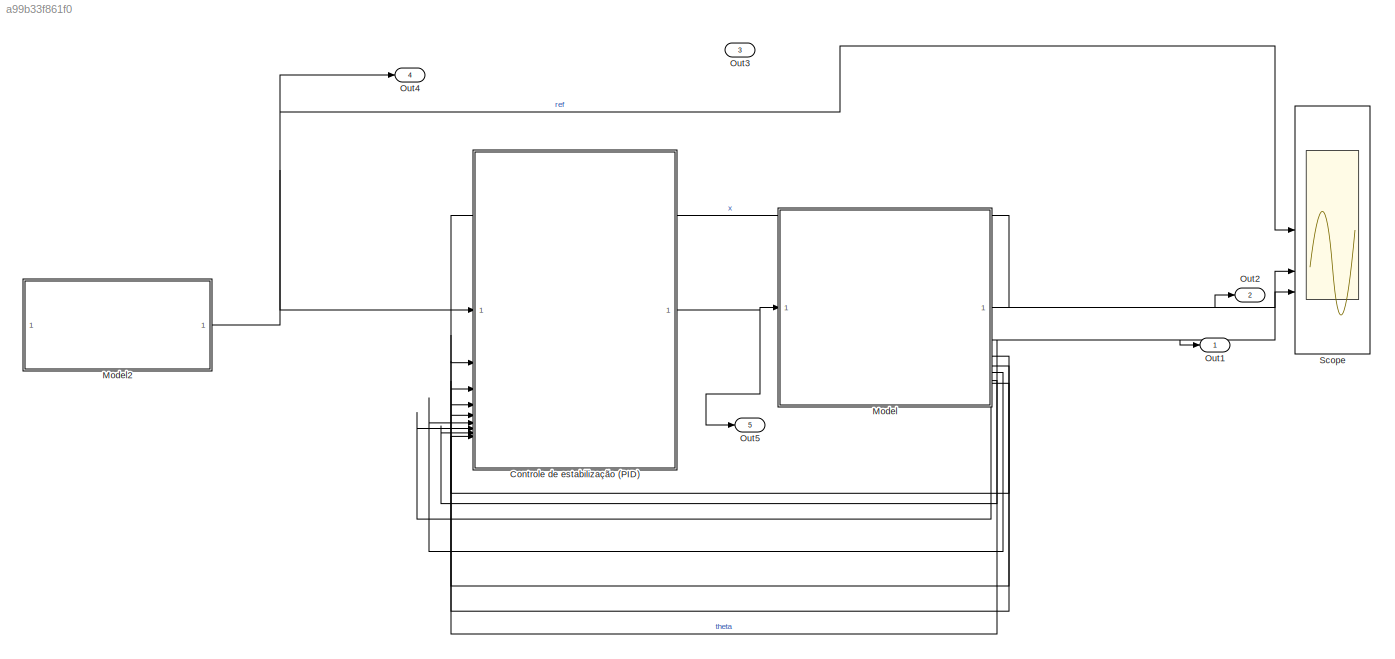
MODEL slx_a99b33f861f0
KIND model
CONFIG AbsTol = auto
CONFIG EnableMultiTasking = on
CONFIG FixedStep = auto
CONFIG MaxStep = auto
CONFIG MinStep = auto
CONFIG RelTol = 1e-6
CONFIG SampleTimeConstraint = Unconstrained
CONFIG SolverName = ode45
CONFIG StartTime = 0.0
CONFIG StopTime = 200
BLOCK [ModelReference] Controle de estabilização (PID)
  ModelNameDialog = exemplo_bloco_controle_PID.slx
  ModelReferenceVersion = 12.70
BLOCK [ModelReference] Model
  ModelNameDialog = exemplo_bloco_modelo.slx
  ModelReferenceVersion = 12.38
BLOCK [ModelReference] Model2
  ModelNameDialog = exemplo_bloco_Sinal.slx
  ModelReferenceVersion = 12.11
BLOCK [Outport] Out1
  VectorParamsAs1DForOutWhenUnconnected = off
BLOCK [Outport] Out2
  Port = 2
  VectorParamsAs1DForOutWhenUnconnected = off
BLOCK [Outport] Out3
  Port = 3
  VectorParamsAs1DForOutWhenUnconnected = off
BLOCK [Outport] Out4
  Port = 4
  VectorParamsAs1DForOutWhenUnconnected = off
BLOCK [Outport] Out5
  Port = 5
  VectorParamsAs1DForOutWhenUnconnected = off
BLOCK [Scope] Scope
  Floating = off
  NumInputPorts = 3
  ScopeSpecificationString = Simulink.scopes.TimeScopeBlockCfg('CurrentConfiguration', extmgr.ConfigurationSet(extmgr.Configuration('Core','General UI',true),extmgr.Configuration('Core','Source UI',true),extmgr.Configuration('Sources','WiredSimulink',true,'DataLoggingMaxPoints','50000','SampleTime','0.01','DataLoggingLimitDataPoints',true,'DataLoggingSaveFormat','Array','DataLoggingDecimation','1','DataLoggingDecimateData',tr...<+3423ch>
NET Controle de estabilização (PID):1 -> Model:1, Out5:1
NET Model2:1 -> Controle de estabilização (PID):1, Out4:1, Scope:1
NET Model:1 -> Controle de estabilização (PID):2, Out2:1, Scope:2
NET Model:2 -> Controle de estabilização (PID):3, Out1:1, Scope:3
LINE Model:3 -> Controle de estabilização (PID):4
LINE Model:4 -> Controle de estabilização (PID):5
LINE Model:5 -> Controle de estabilização (PID):6
LINE Model:6 -> Controle de estabilização (PID):7
LINE Model:7 -> Controle de estabilização (PID):8
LINE Model:8 -> Controle de estabilização (PID):9
note: NET lines group one-source signal fan-out (src -> all destinations, sorted); 1:1 wires keep LINE
